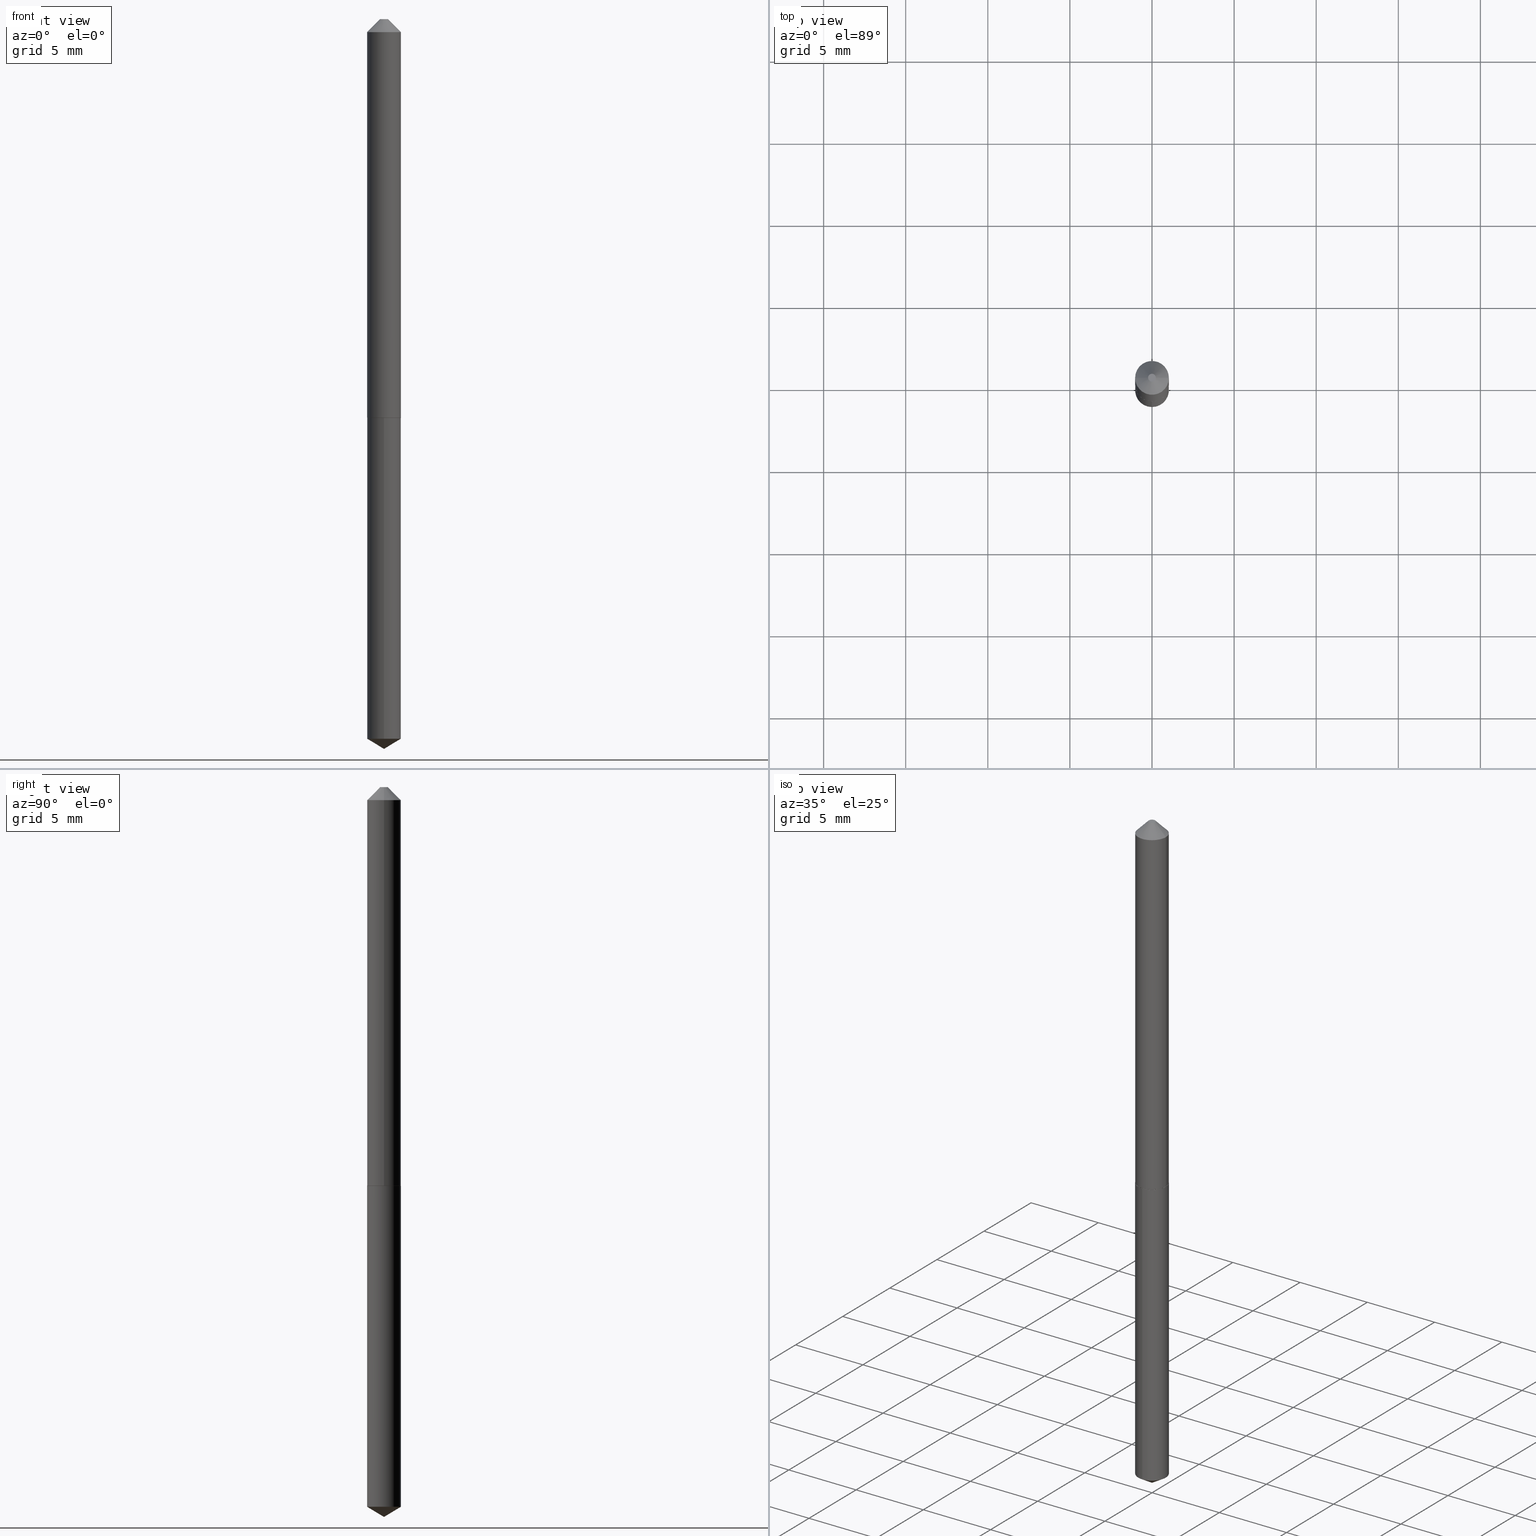
[diagram: canonical four-view strip — front | top / right | iso, engineering-drawing reading convention]
A machine part, canonical four-view strip (front | top / right | iso — engineering-drawing reading convention). The complete STEP part file that produces these views, byte-faithful:
ISO-10303-21;
HEADER;
FILE_DESCRIPTION (( 'STEP AP203' ),
    '1' );
FILE_NAME ('57115.STEP',
    '2024-04-22T22:23:13',
    ( '' ),
    ( '' ),
    'SwSTEP 2.0',
    'SolidWorks 2023',
    '' );
FILE_SCHEMA (( 'CONFIG_CONTROL_DESIGN' ));
ENDSEC;

DATA;
#1 = DIRECTION ( 'NONE',  ( -2.445381996269864290E-29, 3.491605655582729130E-15, 1.000000000000000000 ) ) ;
#2 = ORIENTED_EDGE ( 'NONE', *, *, #8, .T. ) ;
#3 = EDGE_CURVE ( 'NONE', #41, #15, #386, .T. ) ;
#4 = ORIENTED_EDGE ( 'NONE', *, *, #248, .T. ) ;
#5 = CARTESIAN_POINT ( 'NONE',  ( -2.828099884462704633E-16, -0.04050000000000333888, -0.9559999999999997389 ) ) ;
#6 = ORIENTED_EDGE ( 'NONE', *, *, #57, .F. ) ;
#7 = DESIGN_CONTEXT ( 'detailed design', #182, 'design' ) ;
#8 = EDGE_CURVE ( 'NONE', #50, #339, #91, .T. ) ;
#9 = FACE_OUTER_BOUND ( 'NONE', #119, .T. ) ;
#10 = PERSON_AND_ORGANIZATION ( #116, #13 ) ;
#11 = AXIS2_PLACEMENT_3D ( 'NONE', #390, #221, #243 ) ;
#12 = COORDINATED_UNIVERSAL_TIME_OFFSET ( 5, 0, .BEHIND. ) ;
#13 = ORGANIZATION ( 'UNSPECIFIED', 'UNSPECIFIED', '' ) ;
#14 = PRODUCT_RELATED_PRODUCT_CATEGORY ( 'detail', '', ( #48 ) ) ;
#15 = VERTEX_POINT ( 'NONE', #181 ) ;
#16 = ORIENTED_EDGE ( 'NONE', *, *, #108, .T. ) ;
#17 = CARTESIAN_POINT ( 'NONE',  ( 2.877698079828828870E-16, 0.04049999999999666367, -0.9559999999999999609 ) ) ;
#18 = CARTESIAN_POINT ( 'NONE',  ( 0.04050000000000011924, -3.618920407710919682E-15, -0.9554999999999997939 ) ) ;
#19 = CARTESIAN_POINT ( 'NONE',  ( 2.337868178712989965E-29, -3.337856159934046563E-15, -0.9559999999999998499 ) ) ;
#20 = ORIENTED_EDGE ( 'NONE', *, *, #99, .F. ) ;
#21 = AXIS2_PLACEMENT_3D ( 'NONE', #28, #355, #266 ) ;
#22 = CARTESIAN_POINT ( 'NONE',  ( 2.337868178712989965E-29, -3.337856159934046563E-15, -0.9559999999999998499 ) ) ;
#23 = DIRECTION ( 'NONE',  ( 2.445381996269864010E-29, -3.491605655582729130E-15, -1.000000000000000000 ) ) ;
#24 = ADVANCED_FACE ( 'NONE', ( #303 ), #216, .T. ) ;
#25 = DIRECTION ( 'NONE',  ( 2.445468806185136597E-29, -3.491481338843145583E-15, -1.000000000000000000 ) ) ;
#26 = FACE_OUTER_BOUND ( 'NONE', #377, .T. ) ;
#27 = CARTESIAN_POINT ( 'NONE',  ( -9.199538025915678741E-28, 1.313545985394044909E-13, 37.62007874015748143 ) ) ;
#28 = CARTESIAN_POINT ( 'NONE',  ( 2.336645444309897725E-29, -3.336110419264625060E-15, -0.9554999999999997939 ) ) ;
#29 = DIRECTION ( 'NONE',  ( -2.445381996269864290E-29, 3.491605655582729130E-15, 1.000000000000000000 ) ) ;
#30 = CONICAL_SURFACE ( 'NONE', #222, 0.04050000000000000822, 0.7853981633974450594 ) ;
#31 = ORIENTED_EDGE ( 'NONE', *, *, #195, .T. ) ;
#32 = ORIENTED_EDGE ( 'NONE', *, *, #264, .F. ) ;
#33 = DIRECTION ( 'NONE',  ( 1.000000000000000000, -6.982962677686265922E-15, 4.876176775795934672E-29 ) ) ;
#34 = MANIFOLD_SOLID_BREP ( 'Body-Move/Copy2[2]', #278 ) ;
#35 = AXIS2_PLACEMENT_3D ( 'NONE', #101, #202, #320 ) ;
#36 = LOCAL_TIME ( 18, 23, 13.00000000000000000, #72 ) ;
#37 = ORIENTED_EDGE ( 'NONE', *, *, #236, .T. ) ;
#38 = PERSON_AND_ORGANIZATION ( #116, #13 ) ;
#39 = CALENDAR_DATE ( 2024, 22, 4 ) ;
#40 = CC_DESIGN_PERSON_AND_ORGANIZATION_ASSIGNMENT ( #164, #100, ( #235 ) ) ;
#41 = VERTEX_POINT ( 'NONE', #240 ) ;
#42 = VERTEX_POINT ( 'NONE', #218 ) ;
#43 = ORIENTED_EDGE ( 'NONE', *, *, #315, .F. ) ;
#44 = LINE ( 'NONE', #166, #107 ) ;
#45 = DIRECTION ( 'NONE',  ( -6.982962677686265922E-15, -1.000000000000000000, 3.468864327941597370E-15 ) ) ;
#46 = CARTESIAN_POINT ( 'NONE',  ( 7.642090019328602662E-31, -1.091087918388490267E-16, -0.03125000000000020817 ) ) ;
#47 = DIRECTION ( 'NONE',  ( 1.000000000000000000, -6.982962677686264344E-15, 0.000000000000000000 ) ) ;
#48 = PRODUCT ( '57115', '57115', '', ( #113 ) ) ;
#49 = ADVANCED_FACE ( 'NONE', ( #208 ), #263, .F. ) ;
#50 = VERTEX_POINT ( 'NONE', #121 ) ;
#51 = AXIS2_PLACEMENT_3D ( 'NONE', #383, #250, #118 ) ;
#52 = DIRECTION ( 'NONE',  ( -2.445381996269864290E-29, 3.491605655582729130E-15, 1.000000000000000000 ) ) ;
#53 = DIRECTION ( 'NONE',  ( -0.7071067811865232589, 7.493145998870265808E-15, 0.7071067811865715536 ) ) ;
#54 =( NAMED_UNIT ( * ) SI_UNIT ( $, .STERADIAN. ) SOLID_ANGLE_UNIT ( ) );
#55 = CYLINDRICAL_SURFACE ( 'NONE', #193, 0.04050000000000000128 ) ;
#56 = EDGE_LOOP ( 'NONE', ( #358, #306 ) ) ;
#57 = EDGE_CURVE ( 'NONE', #254, #41, #98, .T. ) ;
#58 = DIRECTION ( 'NONE',  ( -2.445381996269864010E-29, 3.491605655582729130E-15, 1.000000000000000000 ) ) ;
#59 = LOCAL_TIME ( 18, 23, 13.00000000000000000, #249 ) ;
#60 = DIRECTION ( 'NONE',  ( -6.982962677686267499E-15, -1.000000000000000000, 6.745303688059908918E-15 ) ) ;
#61 = VERTEX_POINT ( 'NONE', #251 ) ;
#62 = CARTESIAN_POINT ( 'NONE',  ( 2.336645444309897725E-29, -3.336110419264625060E-15, -0.9554999999999997939 ) ) ;
#63 = ORIENTED_EDGE ( 'NONE', *, *, #304, .F. ) ;
#64 =( LENGTH_UNIT ( ) NAMED_UNIT ( * ) SI_UNIT ( $, .METRE. ) );
#65 = CARTESIAN_POINT ( 'NONE',  ( -3.743544432386673062E-48, 5.344789307371237567E-34, 1.530808498934197508E-19 ) ) ;
#66 = PRODUCT_DEFINITION ( 'UNKNOWN', '', #235, #7 ) ;
#67 = PERSON_AND_ORGANIZATION_ROLE ( 'creator' ) ;
#68 = CC_DESIGN_SECURITY_CLASSIFICATION ( #214, ( #235 ) ) ;
#69 = ORIENTED_EDGE ( 'NONE', *, *, #92, .F. ) ;
#70 = COORDINATED_UNIVERSAL_TIME_OFFSET ( 5, 0, .BEHIND. ) ;
#71 = DIRECTION ( 'NONE',  ( 1.000000000000000000, -6.982962677686264344E-15, 0.000000000000000000 ) ) ;
#72 = COORDINATED_UNIVERSAL_TIME_OFFSET ( 5, 0, .BEHIND. ) ;
#73 = CIRCLE ( 'NONE', #175, 0.04050000000000000128 ) ;
#74 = SECURITY_CLASSIFICATION_LEVEL ( 'unclassified' ) ;
#75 = AXIS2_PLACEMENT_3D ( 'NONE', #331, #239, #217 ) ;
#76 = DIMENSIONAL_EXPONENTS ( 1.000000000000000000, 0.000000000000000000, 0.000000000000000000, 0.000000000000000000, 0.000000000000000000, 0.000000000000000000, 0.000000000000000000 ) ;
#77 = ORIENTED_EDGE ( 'NONE', *, *, #170, .F. ) ;
#78 = CC_DESIGN_PERSON_AND_ORGANIZATION_ASSIGNMENT ( #106, #238, ( #48 ) ) ;
#79 = ORIENTED_EDGE ( 'NONE', *, *, #264, .T. ) ;
#80 = DIRECTION ( 'NONE',  ( -1.000000000000000000, 6.982962677686267499E-15, 0.000000000000000000 ) ) ;
#81 = APPROVAL_STATUS ( 'not_yet_approved' ) ;
#82 = CC_DESIGN_PERSON_AND_ORGANIZATION_ASSIGNMENT ( #10, #348, ( #214 ) ) ;
#83 = FACE_OUTER_BOUND ( 'NONE', #271, .T. ) ;
#84 = DIRECTION ( 'NONE',  ( 1.000000000000000000, -6.982962677686265922E-15, 4.876176775795934672E-29 ) ) ;
#85 = LINE ( 'NONE', #145, #128 ) ;
#86 = ORIENTED_EDGE ( 'NONE', *, *, #57, .T. ) ;
#87 = APPROVAL_PERSON_ORGANIZATION ( #200, #179, #258 ) ;
#88 = DIRECTION ( 'NONE',  ( -2.445468806185136597E-29, 3.491481338843145583E-15, 1.000000000000000000 ) ) ;
#89 = CARTESIAN_POINT ( 'NONE',  ( 0.04050000000000000822, -3.869589607485960844E-16, -0.03125000000000020817 ) ) ;
#90 = CARTESIAN_POINT ( 'NONE',  ( -2.828099884462704633E-16, -0.04050000000000333888, -0.9559999999999997389 ) ) ;
#91 = LINE ( 'NONE', #89, #162 ) ;
#92 = EDGE_CURVE ( 'NONE', #95, #308, #321, .T. ) ;
#93 = APPLICATION_CONTEXT ( 'configuration controlled 3d designs of mechanical parts and assemblies' ) ;
#94 = CARTESIAN_POINT ( 'NONE',  ( 4.219993467279741318E-29, -6.025223332874383434E-15, -1.725665144929383610 ) ) ;
#95 = VERTEX_POINT ( 'NONE', #112 ) ;
#96 = ORIENTED_EDGE ( 'NONE', *, *, #165, .T. ) ;
#97 = EDGE_CURVE ( 'NONE', #123, #15, #187, .T. ) ;
#98 = CIRCLE ( 'NONE', #21, 0.04050000000000011924 ) ;
#99 = EDGE_CURVE ( 'NONE', #339, #15, #204, .T. ) ;
#100 = PERSON_AND_ORGANIZATION_ROLE ( 'design_supplier' ) ;
#101 = CARTESIAN_POINT ( 'NONE',  ( 4.219993467279741318E-29, -6.025223332874383434E-15, -1.725665144929383610 ) ) ;
#102 = AXIS2_PLACEMENT_3D ( 'NONE', #341, #316, #33 ) ;
#103 = CC_DESIGN_APPROVAL ( #255, ( #235 ) ) ;
#104 = CC_DESIGN_PERSON_AND_ORGANIZATION_ASSIGNMENT ( #38, #317, ( #235 ) ) ;
#105 = ORIENTED_EDGE ( 'NONE', *, *, #137, .F. ) ;
#106 = PERSON_AND_ORGANIZATION ( #116, #13 ) ;
#107 = VECTOR ( 'NONE', #171, 39.37007874015748143 ) ;
#108 = EDGE_CURVE ( 'NONE', #133, #41, #336, .T. ) ;
#109 = CARTESIAN_POINT ( 'NONE',  ( -2.828099884462515800E-16, -0.04050000000000603118, -1.725665144929383388 ) ) ;
#110 = EDGE_LOOP ( 'NONE', ( #184, #369, #169, #134 ) ) ;
#111 = DIRECTION ( 'NONE',  ( -2.445381996269864290E-29, 3.491605655582729130E-15, 1.000000000000000000 ) ) ;
#112 = CARTESIAN_POINT ( 'NONE',  ( 2.877698079828827884E-16, 0.04049999999999397138, -1.725665144929384054 ) ) ;
#113 = MECHANICAL_CONTEXT ( 'NONE', #93, 'mechanical' ) ;
#114 = DIRECTION ( 'NONE',  ( -2.445468806185136877E-29, 3.491481338843145188E-15, 1.000000000000000000 ) ) ;
#115 = ORIENTED_EDGE ( 'NONE', *, *, #195, .F. ) ;
#116 = PERSON ( 'UNSPECIFIED', 'UNSPECIFIED', 'UNSPECIFIED', ('UNSPECIFIED'), ('UNSPECIFIED'), ('UNSPECIFIED') ) ;
#117 = VECTOR ( 'NONE', #378, 39.37007874015748854 ) ;
#118 = DIRECTION ( 'NONE',  ( 1.000000000000000000, -6.982962677686266711E-15, 4.876047628672460867E-29 ) ) ;
#119 = EDGE_LOOP ( 'NONE', ( #86, #126, #20, #224 ) ) ;
#120 = FACE_OUTER_BOUND ( 'NONE', #130, .T. ) ;
#121 = CARTESIAN_POINT ( 'NONE',  ( 0.009250000000000001277, -2.252092836139914027E-16, 1.530808498944322844E-19 ) ) ;
#122 = CARTESIAN_POINT ( 'NONE',  ( -9.199538025915678741E-28, 1.313545985394044909E-13, 37.62007874015748143 ) ) ;
#123 = VERTEX_POINT ( 'NONE', #178 ) ;
#124 = CIRCLE ( 'NONE', #51, 0.009250000000000001277 ) ;
#125 = DIRECTION ( 'NONE',  ( -2.445468806185136597E-29, 3.491481338843145583E-15, 1.000000000000000000 ) ) ;
#126 = ORIENTED_EDGE ( 'NONE', *, *, #3, .T. ) ;
#127 = ADVANCED_FACE ( 'NONE', ( #26 ), #318, .T. ) ;
#128 = VECTOR ( 'NONE', #114, 39.37007874015748143 ) ;
#129 = CALENDAR_DATE ( 2024, 22, 4 ) ;
#130 = EDGE_LOOP ( 'NONE', ( #279, #4 ) ) ;
#131 = ADVANCED_FACE ( 'NONE', ( #9 ), #370, .T. ) ;
#132 = CC_DESIGN_APPROVAL ( #179, ( #214 ) ) ;
#133 = VERTEX_POINT ( 'NONE', #277 ) ;
#134 = ORIENTED_EDGE ( 'NONE', *, *, #232, .F. ) ;
#135 = APPLICATION_PROTOCOL_DEFINITION ( 'international standard', 'config_control_design', 1994, #93 ) ;
#136 = LINE ( 'NONE', #288, #272 ) ;
#137 = EDGE_CURVE ( 'NONE', #123, #50, #140, .T. ) ;
#138 = FACE_OUTER_BOUND ( 'NONE', #335, .T. ) ;
#139 = ORIENTED_EDGE ( 'NONE', *, *, #165, .F. ) ;
#140 = CIRCLE ( 'NONE', #252, 0.009250000000000001277 ) ;
#141 = CIRCLE ( 'NONE', #389, 0.04050000000000011924 ) ;
#142 = DIRECTION ( 'NONE',  ( 1.000000000000000000, -6.982962677686265922E-15, 4.876176775795935793E-29 ) ) ;
#143 = UNCERTAINTY_MEASURE_WITH_UNIT (LENGTH_MEASURE( 1.000000000000000082E-05 ), #267, 'distance_accuracy_value', 'NONE');
#144 = VERTEX_POINT ( 'NONE', #5 ) ;
#145 = CARTESIAN_POINT ( 'NONE',  ( 0.04050000000000007067, -2.828099884462942771E-16, 1.974851594197357093E-30 ) ) ;
#146 = DIRECTION ( 'NONE',  ( 6.982962677686265922E-15, 1.000000000000000000, -3.491605655582729130E-15 ) ) ;
#147 = EDGE_CURVE ( 'NONE', #144, #159, #73, .T. ) ;
#148 = DIRECTION ( 'NONE',  ( -6.982962677686265922E-15, -1.000000000000000000, 3.468864327941597370E-15 ) ) ;
#149 = CARTESIAN_POINT ( 'NONE',  ( -0.04050000000000000822, 1.737011966074448559E-16, -0.03125000000000020817 ) ) ;
#150 = CIRCLE ( 'NONE', #298, 0.04000000000000011879 ) ;
#151 = PERSON_AND_ORGANIZATION ( #116, #13 ) ;
#152 = CONICAL_SURFACE ( 'NONE', #158, 0.04050000000000000822, 0.7853981633974450594 ) ;
#153 = DIRECTION ( 'NONE',  ( 2.438088387897960049E-29, -3.491481338843145188E-15, -1.000000000000000000 ) ) ;
#154 = DIRECTION ( 'NONE',  ( -2.445468806185136877E-29, 3.491481338843145188E-15, 1.000000000000000000 ) ) ;
#155 = ORIENTED_EDGE ( 'NONE', *, *, #248, .F. ) ;
#156 = ADVANCED_FACE ( 'NONE', ( #230 ), #374, .T. ) ;
#157 = CIRCLE ( 'NONE', #35, 0.04050000000000000128 ) ;
#158 = AXIS2_PLACEMENT_3D ( 'NONE', #46, #172, #173 ) ;
#159 = VERTEX_POINT ( 'NONE', #17 ) ;
#160 = DATE_AND_TIME ( #129, #313 ) ;
#161 = DATE_AND_TIME ( #368, #199 ) ;
#162 = VECTOR ( 'NONE', #353, 39.37007874015748143 ) ;
#163 = DIRECTION ( 'NONE',  ( -2.445381996269864290E-29, 3.491605655582729130E-15, 1.000000000000000000 ) ) ;
#164 = PERSON_AND_ORGANIZATION ( #116, #13 ) ;
#165 = EDGE_CURVE ( 'NONE', #308, #95, #157, .T. ) ;
#166 = CARTESIAN_POINT ( 'NONE',  ( 4.279585929483831196E-29, -6.110072203663692407E-15, -1.750000000000000000 ) ) ;
#167 = AXIS2_PLACEMENT_3D ( 'NONE', #94, #384, #60 ) ;
#168 = AXIS2_PLACEMENT_3D ( 'NONE', #242, #300, #385 ) ;
#169 = ORIENTED_EDGE ( 'NONE', *, *, #357, .T. ) ;
#170 = EDGE_CURVE ( 'NONE', #61, #95, #44, .T. ) ;
#171 = DIRECTION ( 'NONE',  ( 6.090539988449778436E-15, 0.8571673007021139989, 0.5150380749100514910 ) ) ;
#172 = DIRECTION ( 'NONE',  ( 2.445468806185136597E-29, -3.491481338843145583E-15, -1.000000000000000000 ) ) ;
#173 = DIRECTION ( 'NONE',  ( -1.000000000000000000, 6.982962677686267499E-15, 0.000000000000000000 ) ) ;
#174 = ORIENTED_EDGE ( 'NONE', *, *, #281, .F. ) ;
#175 = AXIS2_PLACEMENT_3D ( 'NONE', #344, #284, #194 ) ;
#176 = DIRECTION ( 'NONE',  ( 1.000000000000000000, 0.000000000000000000, 0.000000000000000000 ) ) ;
#177 = DIRECTION ( 'NONE',  ( -2.445381996269864010E-29, 3.491605655582729130E-15, 1.000000000000000000 ) ) ;
#178 = CARTESIAN_POINT ( 'NONE',  ( -0.009250000000000001277, 1.191468006880214150E-16, 1.530808498927775736E-19 ) ) ;
#179 = APPROVAL ( #233, 'UNSPECIFIED' ) ;
#180 = FACE_OUTER_BOUND ( 'NONE', #293, .T. ) ;
#181 = CARTESIAN_POINT ( 'NONE',  ( -0.04050000000000000822, -1.434839797568894869E-15, -0.03125000000000020817 ) ) ;
#182 = APPLICATION_CONTEXT ( 'configuration controlled 3d designs of mechanical parts and assemblies' ) ;
#183 = CARTESIAN_POINT ( 'NONE',  ( 2.877698079828639051E-16, 0.04049999999999666367, -0.9559999999999999609 ) ) ;
#184 = ORIENTED_EDGE ( 'NONE', *, *, #3, .F. ) ;
#185 = AXIS2_PLACEMENT_3D ( 'NONE', #62, #220, #188 ) ;
#186 = EDGE_CURVE ( 'NONE', #42, #254, #294, .T. ) ;
#187 = LINE ( 'NONE', #149, #234 ) ;
#188 = DIRECTION ( 'NONE',  ( 1.000000000000000000, -6.982962677686264344E-15, 0.000000000000000000 ) ) ;
#189 = EDGE_LOOP ( 'NONE', ( #155, #2, #283, #319 ) ) ;
#190 = APPROVAL_DATE_TIME ( #289, #255 ) ;
#191 = ORIENTED_EDGE ( 'NONE', *, *, #170, .T. ) ;
#192 = AXIS2_PLACEMENT_3D ( 'NONE', #299, #23, #146 ) ;
#193 = AXIS2_PLACEMENT_3D ( 'NONE', #244, #1, #247 ) ;
#194 = DIRECTION ( 'NONE',  ( -6.982962677686267499E-15, -1.000000000000000000, 3.372651844029954459E-15 ) ) ;
#195 = EDGE_CURVE ( 'NONE', #61, #308, #136, .T. ) ;
#196 = APPROVAL_DATE_TIME ( #231, #340 ) ;
#197 = APPROVAL_STATUS ( 'not_yet_approved' ) ;
#198 = ADVANCED_BREP_SHAPE_REPRESENTATION ( '57115', ( #310, #34, #366 ), #237 ) ;
#199 = LOCAL_TIME ( 18, 23, 13.00000000000000000, #70 ) ;
#200 = PERSON_AND_ORGANIZATION ( #116, #13 ) ;
#201 = ORIENTED_EDGE ( 'NONE', *, *, #92, .T. ) ;
#202 = DIRECTION ( 'NONE',  ( -2.445381996269864290E-29, 3.491605655582729130E-15, 1.000000000000000000 ) ) ;
#203 = ADVANCED_FACE ( 'NONE', ( #207 ), #30, .T. ) ;
#204 = CIRCLE ( 'NONE', #11, 0.04050000000000000822 ) ;
#205 = DIRECTION ( 'NONE',  ( -2.445468806185136597E-29, 3.491481338843145583E-15, 1.000000000000000000 ) ) ;
#206 = APPROVAL_ROLE ( '' ) ;
#207 = FACE_OUTER_BOUND ( 'NONE', #189, .T. ) ;
#208 = FACE_OUTER_BOUND ( 'NONE', #56, .T. ) ;
#209 = LENGTH_MEASURE_WITH_UNIT ( LENGTH_MEASURE( 0.02539999999999999897 ), #64 );
#210 = PLANE ( 'NONE',  #329 ) ;
#211 = ADVANCED_FACE ( 'NONE', ( #138 ), #307, .T. ) ;
#212 = CARTESIAN_POINT ( 'NONE',  ( -0.04050000000000011924, -3.048340611281783834E-15, -0.9554999999999997939 ) ) ;
#213 = AXIS2_PLACEMENT_3D ( 'NONE', #122, #163, #45 ) ;
#214 = SECURITY_CLASSIFICATION ( '', '', #74 ) ;
#215 = DIRECTION ( 'NONE',  ( 1.000000000000000000, -6.982962677686263555E-15, 0.000000000000000000 ) ) ;
#216 = CYLINDRICAL_SURFACE ( 'NONE', #322, 0.04050000000000007067 ) ;
#217 = DIRECTION ( 'NONE',  ( 1.000000000000000000, -6.982962677686267499E-15, 0.000000000000000000 ) ) ;
#218 = CARTESIAN_POINT ( 'NONE',  ( 0.04000000000000011879, -3.617174667041498178E-15, -0.9559999999999998499 ) ) ;
#219 = CC_DESIGN_PERSON_AND_ORGANIZATION_ASSIGNMENT ( #273, #67, ( #66 ) ) ;
#220 = DIRECTION ( 'NONE',  ( -2.445468806185136597E-29, 3.491481338843145583E-15, 1.000000000000000000 ) ) ;
#221 = DIRECTION ( 'NONE',  ( -2.445468806185136597E-29, 3.491481338843145583E-15, 1.000000000000000000 ) ) ;
#222 = AXIS2_PLACEMENT_3D ( 'NONE', #334, #25, #80 ) ;
#223 = EDGE_LOOP ( 'NONE', ( #275, #362 ) ) ;
#224 = ORIENTED_EDGE ( 'NONE', *, *, #357, .F. ) ;
#225 = ADVANCED_FACE ( 'NONE', ( #120 ), #210, .F. ) ;
#226 = COORDINATED_UNIVERSAL_TIME_OFFSET ( 5, 0, .BEHIND. ) ;
#227 = ORIENTED_EDGE ( 'NONE', *, *, #97, .T. ) ;
#228 = CONICAL_SURFACE ( 'NONE', #185, 0.04050000000000011924, 0.7853981633974141952 ) ;
#229 = CALENDAR_DATE ( 2024, 22, 4 ) ;
#230 = FACE_OUTER_BOUND ( 'NONE', #309, .T. ) ;
#231 = DATE_AND_TIME ( #39, #59 ) ;
#232 = EDGE_CURVE ( 'NONE', #15, #339, #372, .T. ) ;
#233 = APPROVAL_STATUS ( 'not_yet_approved' ) ;
#234 = VECTOR ( 'NONE', #330, 39.37007874015748143 ) ;
#235 = PRODUCT_DEFINITION_FORMATION_WITH_SPECIFIED_SOURCE ( 'ANY', '', #48, .NOT_KNOWN. ) ;
#236 = EDGE_CURVE ( 'NONE', #42, #133, #150, .T. ) ;
#237 =( GEOMETRIC_REPRESENTATION_CONTEXT ( 3 ) GLOBAL_UNCERTAINTY_ASSIGNED_CONTEXT ( ( #143 ) ) GLOBAL_UNIT_ASSIGNED_CONTEXT ( ( #267, #351, #54 ) ) REPRESENTATION_CONTEXT ( 'NONE', 'WORKASPACE' ) );
#238 = PERSON_AND_ORGANIZATION_ROLE ( 'design_owner' ) ;
#239 = DIRECTION ( 'NONE',  ( -2.445468806185136597E-29, 3.491481338843145583E-15, 1.000000000000000000 ) ) ;
#240 = CARTESIAN_POINT ( 'NONE',  ( -0.04050000000000011924, -3.048340611281783834E-15, -0.9554999999999997939 ) ) ;
#241 = ADVANCED_FACE ( 'NONE', ( #83 ), #55, .T. ) ;
#242 = CARTESIAN_POINT ( 'NONE',  ( 2.337868178712989965E-29, -3.337856159934046563E-15, -0.9559999999999998499 ) ) ;
#243 = DIRECTION ( 'NONE',  ( 1.000000000000000000, -6.982962677686267499E-15, 0.000000000000000000 ) ) ;
#244 = CARTESIAN_POINT ( 'NONE',  ( 2.337868178712989965E-29, -3.337856159934046563E-15, -0.9559999999999998499 ) ) ;
#245 = CARTESIAN_POINT ( 'NONE',  ( -0.04050000000000007067, 2.877698079828410774E-16, -1.992168711553240552E-30 ) ) ;
#246 = AXIS2_PLACEMENT_3D ( 'NONE', #22, #305, #142 ) ;
#247 = DIRECTION ( 'NONE',  ( -6.982962677686267499E-15, -1.000000000000000000, 3.372651844029954459E-15 ) ) ;
#248 = EDGE_CURVE ( 'NONE', #50, #123, #124, .T. ) ;
#249 = COORDINATED_UNIVERSAL_TIME_OFFSET ( 5, 0, .BEHIND. ) ;
#250 = DIRECTION ( 'NONE',  ( -2.445468806185136597E-29, 3.491481338843145583E-15, 1.000000000000000000 ) ) ;
#251 = CARTESIAN_POINT ( 'NONE',  ( 4.279418493472261456E-29, -6.110309897269775780E-15, -1.750000000000000000 ) ) ;
#252 = AXIS2_PLACEMENT_3D ( 'NONE', #65, #125, #282 ) ;
#253 = AXIS2_PLACEMENT_3D ( 'NONE', #27, #29, #148 ) ;
#254 = VERTEX_POINT ( 'NONE', #387 ) ;
#255 = APPROVAL ( #197, 'UNSPECIFIED' ) ;
#256 = ORIENTED_EDGE ( 'NONE', *, *, #108, .F. ) ;
#257 = VECTOR ( 'NONE', #58, 39.37007874015748143 ) ;
#258 = APPROVAL_ROLE ( '' ) ;
#259 = ADVANCED_FACE ( 'NONE', ( #180 ), #326, .T. ) ;
#260 = AXIS2_PLACEMENT_3D ( 'NONE', #381, #111, #270 ) ;
#261 = DIRECTION ( 'NONE',  ( 0.000000000000000000, 0.000000000000000000, 1.000000000000000000 ) ) ;
#262 = DIRECTION ( 'NONE',  ( -6.982962677686267499E-15, -1.000000000000000000, 3.372651844029954459E-15 ) ) ;
#263 = PLANE ( 'NONE',  #192 ) ;
#264 = EDGE_CURVE ( 'NONE', #308, #144, #360, .T. ) ;
#265 = CARTESIAN_POINT ( 'NONE',  ( 0.04050000000000000822, -3.919187802851428847E-16, -0.03125000000000020817 ) ) ;
#266 = DIRECTION ( 'NONE',  ( 1.000000000000000000, -6.982962677686264344E-15, 0.000000000000000000 ) ) ;
#267 =( CONVERSION_BASED_UNIT ( 'INCH', #209 ) LENGTH_UNIT ( ) NAMED_UNIT ( #76 ) );
#268 = FACE_OUTER_BOUND ( 'NONE', #223, .T. ) ;
#269 = DIRECTION ( 'NONE',  ( -2.445468806185136597E-29, 3.491481338843145583E-15, 1.000000000000000000 ) ) ;
#270 = DIRECTION ( 'NONE',  ( -6.982962677686267499E-15, -1.000000000000000000, 3.372651844029954459E-15 ) ) ;
#271 = EDGE_LOOP ( 'NONE', ( #96, #343, #312, #32 ) ) ;
#272 = VECTOR ( 'NONE', #302, 39.37007874015748143 ) ;
#273 = PERSON_AND_ORGANIZATION ( #116, #13 ) ;
#274 = DIRECTION ( 'NONE',  ( -1.000000000000000000, 6.982962677686265922E-15, -4.876176775795935793E-29 ) ) ;
#275 = ORIENTED_EDGE ( 'NONE', *, *, #236, .F. ) ;
#276 = ORIENTED_EDGE ( 'NONE', *, *, #232, .T. ) ;
#277 = CARTESIAN_POINT ( 'NONE',  ( -0.04000000000000011879, -3.050989838455894641E-15, -0.9559999999999998499 ) ) ;
#278 = CLOSED_SHELL ( 'NONE', ( #203, #131, #376, #324, #127, #24, #285, #225 ) ) ;
#279 = ORIENTED_EDGE ( 'NONE', *, *, #137, .T. ) ;
#280 = LOCAL_TIME ( 18, 23, 13.00000000000000000, #226 ) ;
#281 = EDGE_CURVE ( 'NONE', #41, #254, #141, .T. ) ;
#282 = DIRECTION ( 'NONE',  ( 1.000000000000000000, -6.982962677686266711E-15, 4.876047628672460867E-29 ) ) ;
#283 = ORIENTED_EDGE ( 'NONE', *, *, #99, .T. ) ;
#284 = DIRECTION ( 'NONE',  ( -2.445381996269864290E-29, 3.491605655582729130E-15, 1.000000000000000000 ) ) ;
#285 = ADVANCED_FACE ( 'NONE', ( #354 ), #152, .T. ) ;
#286 = CALENDAR_DATE ( 2024, 22, 4 ) ;
#287 = VECTOR ( 'NONE', #177, 39.37007874015748143 ) ;
#288 = CARTESIAN_POINT ( 'NONE',  ( 4.279418493472261456E-29, -6.110309897269775780E-15, -1.750000000000000000 ) ) ;
#289 = DATE_AND_TIME ( #229, #280 ) ;
#290 = PRODUCT_DEFINITION_SHAPE ( 'NONE', 'NONE',  #66 ) ;
#291 = ORIENTED_EDGE ( 'NONE', *, *, #350, .T. ) ;
#292 = CC_DESIGN_APPROVAL ( #340, ( #66 ) ) ;
#293 = EDGE_LOOP ( 'NONE', ( #43, #201, #79, #63 ) ) ;
#294 = LINE ( 'NONE', #18, #117 ) ;
#295 = PERSON_AND_ORGANIZATION ( #116, #13 ) ;
#296 = CARTESIAN_POINT ( 'NONE',  ( 2.337868178712989965E-29, -3.337856159934046563E-15, -0.9559999999999998499 ) ) ;
#297 = PLANE ( 'NONE',  #246 ) ;
#298 = AXIS2_PLACEMENT_3D ( 'NONE', #296, #88, #215 ) ;
#299 = CARTESIAN_POINT ( 'NONE',  ( 2.337868178712989965E-29, -3.337856159934046563E-15, -0.9559999999999998499 ) ) ;
#300 = DIRECTION ( 'NONE',  ( -2.445468806185136597E-29, 3.491481338843145583E-15, 1.000000000000000000 ) ) ;
#301 = CARTESIAN_POINT ( 'NONE',  ( 2.336645444309897725E-29, -3.336110419264625060E-15, -0.9554999999999997939 ) ) ;
#302 = DIRECTION ( 'NONE',  ( -5.985567269335942857E-15, -0.8571673007021103352, 0.5150380749100574862 ) ) ;
#303 = FACE_OUTER_BOUND ( 'NONE', #110, .T. ) ;
#304 = EDGE_CURVE ( 'NONE', #159, #144, #347, .T. ) ;
#305 = DIRECTION ( 'NONE',  ( -2.438088387897960049E-29, 3.491481338843145188E-15, 1.000000000000000000 ) ) ;
#306 = ORIENTED_EDGE ( 'NONE', *, *, #304, .T. ) ;
#307 = CONICAL_SURFACE ( 'NONE', #253, 65.52281426576837475, 1.029744258676654090 ) ;
#308 = VERTEX_POINT ( 'NONE', #109 ) ;
#309 = EDGE_LOOP ( 'NONE', ( #115, #191, #139 ) ) ;
#310 = MANIFOLD_SOLID_BREP ( 'Body-Move/Copy2[1]', #365 ) ;
#311 = APPROVAL_DATE_TIME ( #160, #179 ) ;
#312 = ORIENTED_EDGE ( 'NONE', *, *, #147, .F. ) ;
#313 = LOCAL_TIME ( 18, 23, 13.00000000000000000, #12 ) ;
#314 = APPROVAL_ROLE ( '' ) ;
#315 = EDGE_CURVE ( 'NONE', #95, #159, #352, .T. ) ;
#316 = DIRECTION ( 'NONE',  ( -2.445468806185136597E-29, 3.491481338843145583E-15, 1.000000000000000000 ) ) ;
#317 = PERSON_AND_ORGANIZATION_ROLE ( 'creator' ) ;
#318 = CONICAL_SURFACE ( 'NONE', #388, 0.04050000000000011924, 0.7853981633974141952 ) ;
#319 = ORIENTED_EDGE ( 'NONE', *, *, #97, .F. ) ;
#320 = DIRECTION ( 'NONE',  ( -6.982962677686267499E-15, -1.000000000000000000, 6.745303688059908918E-15 ) ) ;
#321 = CIRCLE ( 'NONE', #167, 0.04050000000000000128 ) ;
#322 = AXIS2_PLACEMENT_3D ( 'NONE', #332, #382, #84 ) ;
#323 = APPLICATION_PROTOCOL_DEFINITION ( 'international standard', 'config_control_design', 1994, #182 ) ;
#324 = ADVANCED_FACE ( 'NONE', ( #268 ), #297, .F. ) ;
#325 = CARTESIAN_POINT ( 'NONE',  ( -1.871772216193336531E-48, 2.672394653685618784E-34, 7.654042494670987541E-20 ) ) ;
#326 = CYLINDRICAL_SURFACE ( 'NONE', #260, 0.04050000000000000128 ) ;
#327 = ORIENTED_EDGE ( 'NONE', *, *, #8, .F. ) ;
#328 = CARTESIAN_POINT ( 'NONE',  ( 2.336645444309897725E-29, -3.336110419264625060E-15, -0.9554999999999997939 ) ) ;
#329 = AXIS2_PLACEMENT_3D ( 'NONE', #325, #153, #274 ) ;
#330 = DIRECTION ( 'NONE',  ( -0.7071067811865452413, 2.468850131082233000E-15, -0.7071067811865497932 ) ) ;
#331 = CARTESIAN_POINT ( 'NONE',  ( 7.642090019328602662E-31, -1.091087918388490267E-16, -0.03125000000000020817 ) ) ;
#332 = CARTESIAN_POINT ( 'NONE',  ( 0.000000000000000000, 0.000000000000000000, 0.000000000000000000 ) ) ;
#333 = CC_DESIGN_DATE_AND_TIME_ASSIGNMENT ( #161, #349, ( #66 ) ) ;
#334 = CARTESIAN_POINT ( 'NONE',  ( 7.642090019328602662E-31, -1.091087918388490267E-16, -0.03125000000000020817 ) ) ;
#335 = EDGE_LOOP ( 'NONE', ( #77, #31, #69 ) ) ;
#336 = LINE ( 'NONE', #212, #379 ) ;
#337 = VECTOR ( 'NONE', #154, 39.37007874015748143 ) ;
#338 = CIRCLE ( 'NONE', #168, 0.04000000000000011879 ) ;
#339 = VERTEX_POINT ( 'NONE', #265 ) ;
#340 = APPROVAL ( #81, 'UNSPECIFIED' ) ;
#341 = CARTESIAN_POINT ( 'NONE',  ( 0.000000000000000000, 0.000000000000000000, 0.000000000000000000 ) ) ;
#342 = DATE_TIME_ROLE ( 'classification_date' ) ;
#343 = ORIENTED_EDGE ( 'NONE', *, *, #315, .T. ) ;
#344 = CARTESIAN_POINT ( 'NONE',  ( 2.337868178712989965E-29, -3.337856159934046563E-15, -0.9559999999999998499 ) ) ;
#345 = SHAPE_DEFINITION_REPRESENTATION ( #290, #198 ) ;
#346 = EDGE_LOOP ( 'NONE', ( #327, #105, #227, #276 ) ) ;
#347 = CIRCLE ( 'NONE', #371, 0.04050000000000000128 ) ;
#348 = PERSON_AND_ORGANIZATION_ROLE ( 'classification_officer' ) ;
#349 = DATE_TIME_ROLE ( 'creation_date' ) ;
#350 = EDGE_CURVE ( 'NONE', #133, #42, #338, .T. ) ;
#351 =( NAMED_UNIT ( * ) PLANE_ANGLE_UNIT ( ) SI_UNIT ( $, .RADIAN. ) );
#352 = LINE ( 'NONE', #183, #287 ) ;
#353 = DIRECTION ( 'NONE',  ( 0.7071067811865452413, -7.319954787623248157E-15, -0.7071067811865497932 ) ) ;
#354 = FACE_OUTER_BOUND ( 'NONE', #346, .T. ) ;
#355 = DIRECTION ( 'NONE',  ( -2.445468806185136597E-29, 3.491481338843145583E-15, 1.000000000000000000 ) ) ;
#356 = FACE_OUTER_BOUND ( 'NONE', #367, .T. ) ;
#357 = EDGE_CURVE ( 'NONE', #254, #339, #85, .T. ) ;
#358 = ORIENTED_EDGE ( 'NONE', *, *, #147, .T. ) ;
#359 = CARTESIAN_POINT ( 'NONE',  ( 0.000000000000000000, 0.000000000000000000, 0.000000000000000000 ) ) ;
#360 = LINE ( 'NONE', #90, #257 ) ;
#361 = ORIENTED_EDGE ( 'NONE', *, *, #186, .F. ) ;
#362 = ORIENTED_EDGE ( 'NONE', *, *, #350, .F. ) ;
#363 = ORIENTED_EDGE ( 'NONE', *, *, #186, .T. ) ;
#364 = CC_DESIGN_DATE_AND_TIME_ASSIGNMENT ( #373, #342, ( #214 ) ) ;
#365 = CLOSED_SHELL ( 'NONE', ( #241, #156, #211, #259, #49 ) ) ;
#366 = AXIS2_PLACEMENT_3D ( 'NONE', #359, #261, #176 ) ;
#367 = EDGE_LOOP ( 'NONE', ( #37, #16, #6, #361 ) ) ;
#368 = CALENDAR_DATE ( 2024, 22, 4 ) ;
#369 = ORIENTED_EDGE ( 'NONE', *, *, #281, .T. ) ;
#370 = CYLINDRICAL_SURFACE ( 'NONE', #102, 0.04050000000000007067 ) ;
#371 = AXIS2_PLACEMENT_3D ( 'NONE', #19, #52, #262 ) ;
#372 = CIRCLE ( 'NONE', #75, 0.04050000000000000822 ) ;
#373 = DATE_AND_TIME ( #286, #36 ) ;
#374 = CONICAL_SURFACE ( 'NONE', #213, 65.52281426576837475, 1.029744258676654090 ) ;
#375 = APPROVAL_PERSON_ORGANIZATION ( #151, #255, #314 ) ;
#376 = ADVANCED_FACE ( 'NONE', ( #356 ), #228, .T. ) ;
#377 = EDGE_LOOP ( 'NONE', ( #256, #291, #363, #174 ) ) ;
#378 = DIRECTION ( 'NONE',  ( 0.7071067811865232589, -2.468850131082003836E-15, 0.7071067811865715536 ) ) ;
#379 = VECTOR ( 'NONE', #53, 39.37007874015748854 ) ;
#380 = APPROVAL_PERSON_ORGANIZATION ( #295, #340, #206 ) ;
#381 = CARTESIAN_POINT ( 'NONE',  ( 2.337868178712989965E-29, -3.337856159934046563E-15, -0.9559999999999998499 ) ) ;
#382 = DIRECTION ( 'NONE',  ( -2.445468806185136597E-29, 3.491481338843145583E-15, 1.000000000000000000 ) ) ;
#383 = CARTESIAN_POINT ( 'NONE',  ( -3.743544432386673062E-48, 5.344789307371237567E-34, 1.530808498934197508E-19 ) ) ;
#384 = DIRECTION ( 'NONE',  ( -2.445381996269864290E-29, 3.491605655582729130E-15, 1.000000000000000000 ) ) ;
#385 = DIRECTION ( 'NONE',  ( 1.000000000000000000, -6.982962677686263555E-15, 0.000000000000000000 ) ) ;
#386 = LINE ( 'NONE', #245, #337 ) ;
#387 = CARTESIAN_POINT ( 'NONE',  ( 0.04050000000000011924, -3.618920407710919682E-15, -0.9554999999999997939 ) ) ;
#388 = AXIS2_PLACEMENT_3D ( 'NONE', #301, #269, #71 ) ;
#389 = AXIS2_PLACEMENT_3D ( 'NONE', #328, #205, #47 ) ;
#390 = CARTESIAN_POINT ( 'NONE',  ( 7.642090019328602662E-31, -1.091087918388490267E-16, -0.03125000000000020817 ) ) ;
ENDSEC;
END-ISO-10303-21;
